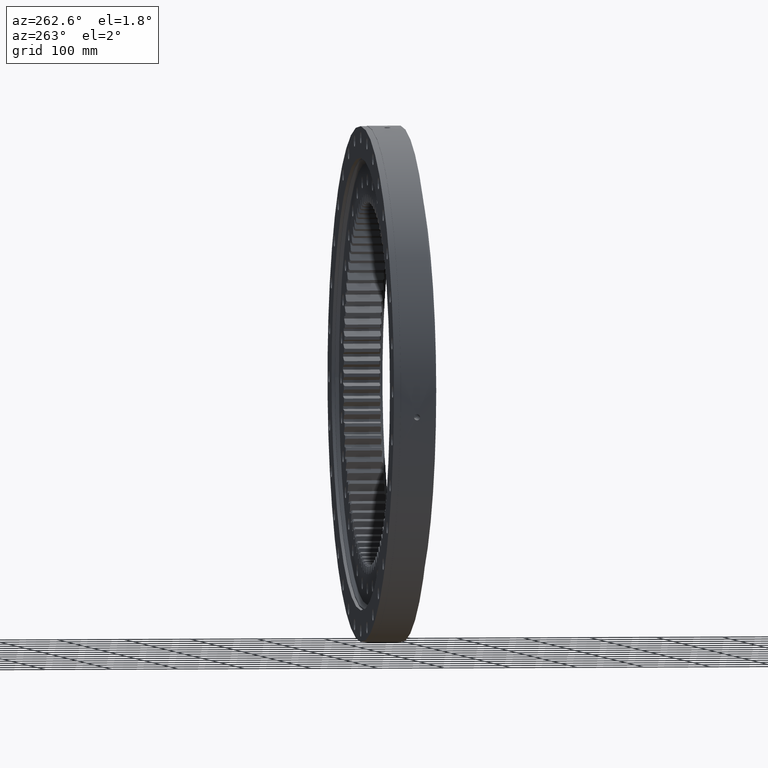
[diagram: clean part render]
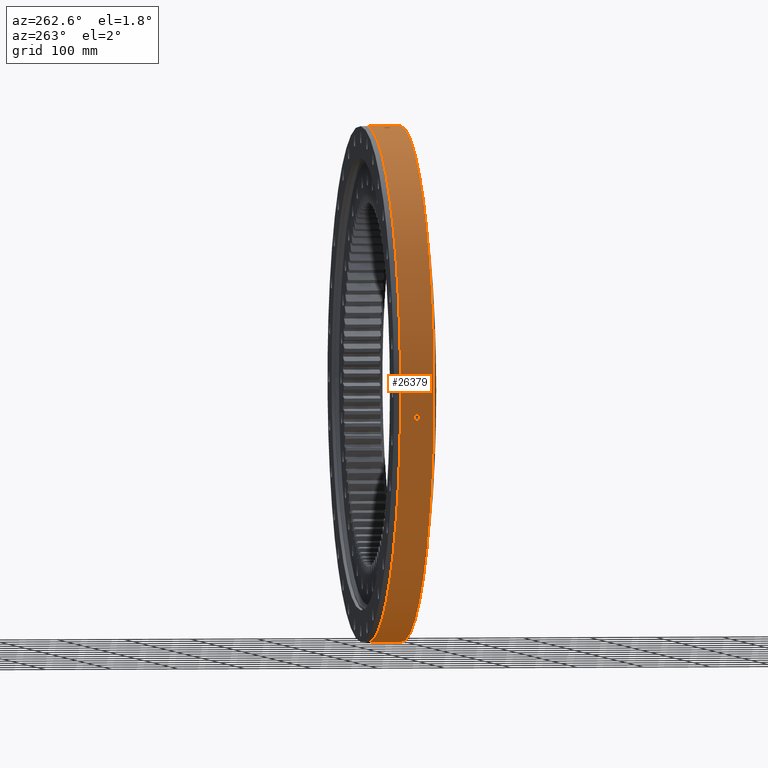
[diagram: same view with one face highlighted and labeled with its STEP entity id]
A machine part, auxiliary view. The second image highlights one B-rep face of the part: STEP entity #26379.
In plain terms, the highlighted cylindrical surface (partial cylindrical patch) has radius 385.5 mm, axis along (0, -1, -0).
Its self-contained STEP definition (entity closure, byte-faithful):
#226 = CARTESIAN_POINT ( 'NONE',  ( -383.2016645652428200, 1.450676202379365800, -42.03269008605138200 ) ) ;
#318 = EDGE_CURVE ( 'NONE', #14353, #25315, #10986, .T. ) ;
#460 = DIRECTION ( 'NONE',  ( 1.173697223544192200E-016, -1.000000000000000000, -3.494217355385783800E-017 ) ) ;
#778 = CARTESIAN_POINT ( 'NONE',  ( -383.2967569236588500, 2.974982815461019400, -41.15688579916335500 ) ) ;
#1023 = CARTESIAN_POINT ( 'NONE',  ( -383.4433818436832000, -4.045621623530661500, -39.76804501639435300 ) ) ;
#1173 = EDGE_CURVE ( 'NONE', #21033, #3564, #20179, .T. ) ;
#1436 = AXIS2_PLACEMENT_3D ( 'NONE', #24187, #16941, #20472 ) ;
#1623 = B_SPLINE_CURVE_WITH_KNOTS ( 'NONE', 3,
 ( #5855, #6726, #14996, #8394, #226, #15526, #10446, #6783, #778, #6037, #13989, #11689, #12382, #12183, #13425, #12693, #12322, #12912, #13292, #12606, #13077, #13769, #13343, #13256, #13848, #14690, #13932, #15019, #20805, #24924, #19376, #19934, #19554, #19737 ),
 .UNSPECIFIED., .F., .F.,
 ( 4, 2, 2, 2, 2, 2, 2, 2, 2, 2, 2, 2, 2, 2, 2, 2, 4 ),
 ( 7.849352296262508800E-019, 0.0008793235656108782300, 0.001758647131221755800, 0.002637970696832633200, 0.003517294262443510700, 0.004396617828054388300, 0.005275941393665265500, 0.006155264959276143500, 0.007034588524887020600, 0.007913912090497897700, 0.008793235656108774900, 0.009672559221719652000, 0.01055188278733052900, 0.01143120635294140600, 0.01231052991855228500, 0.01318985348416316200, 0.01406917704977403900 ),
 .UNSPECIFIED. ) ;
#1955 = EDGE_CURVE ( 'NONE', #18671, #4089, #25962, .T. ) ;
#2660 = EDGE_CURVE ( 'NONE', #18671, #26499, #5840, .T. ) ;
#2884 = CARTESIAN_POINT ( 'NONE',  ( -383.4166013391781600, -3.907535191448782400, -40.02523683465956600 ) ) ;
#3291 = CARTESIAN_POINT ( 'NONE',  ( -40.51150435746916400, -3.581689695793402800, 383.3655276375947700 ) ) ;
#3300 = CARTESIAN_POINT ( 'NONE',  ( -40.74204437356131300, -3.391799928255416800, 383.3410740150256400 ) ) ;
#3325 = CARTESIAN_POINT ( 'NONE',  ( -41.15541694403901800, -2.976679605437417800, 383.2969147578583600 ) ) ;
#3495 = CARTESIAN_POINT ( 'NONE',  ( -35.79674743004310500, -4.042874163953057700, 383.8344915170073900 ) ) ;
#3498 = CARTESIAN_POINT ( 'NONE',  ( -383.6150045424285500, -4.500248044623155000, -38.07711018638053000 ) ) ;
#3524 = CARTESIAN_POINT ( 'NONE',  ( -38.94138308133139500, -4.357378170738210900, 383.5282275650133100 ) ) ;
#3550 = CARTESIAN_POINT ( 'NONE',  ( -39.76804501639299600, -4.045621623530633900, 383.4433818436831400 ) ) ;
#3558 = CARTESIAN_POINT ( 'NONE',  ( -40.02523683465823700, -3.907535191448753900, 383.4166013391781600 ) ) ;
#3564 = VERTEX_POINT ( 'NONE', #5047 ) ;
#3645 = ORIENTED_EDGE ( 'NONE', *, *, #8642, .T. ) ;
#4020 = CARTESIAN_POINT ( 'NONE',  ( -41.34067944963337000, -2.750360899487011700, 383.2769563430252900 ) ) ;
#4048 = CARTESIAN_POINT ( 'NONE',  ( -383.4993056657351100, -4.271333156886112400, -39.22508174683153500 ) ) ;
#4054 = CARTESIAN_POINT ( 'NONE',  ( -41.66765033094044000, -2.259569524779278600, 383.2415477956807900 ) ) ;
#4080 = CARTESIAN_POINT ( 'NONE',  ( -41.80729243394694100, -1.997041291930236700, 383.2263207847927900 ) ) ;
#4089 = VERTEX_POINT ( 'NONE', #20272 ) ;
#4278 = CARTESIAN_POINT ( 'NONE',  ( -42.03084031017920100, -1.455753873935970800, 383.2018673045927200 ) ) ;
#4332 = CARTESIAN_POINT ( 'NONE',  ( -42.11661706502265200, -1.173645587967845300, 383.1924372391195000 ) ) ;
#4364 = CARTESIAN_POINT ( 'NONE',  ( -39.22508174683019900, -4.271333156886085700, 383.4993056657352200 ) ) ;
#4409 = VERTEX_POINT ( 'NONE', #26227 ) ;
#4454 = EDGE_CURVE ( 'NONE', #4409, #26499, #18948, .T. ) ;
#4534 = CARTESIAN_POINT ( 'NONE',  ( -33.30470185917213400, -5.889265935609994100E-009, 384.0586502528900600 ) ) ;
#4738 = CARTESIAN_POINT ( 'NONE',  ( -37.48656920171220700, -4.499748781644789200, 383.6731618965788500 ) ) ;
#4770 = CARTESIAN_POINT ( 'NONE',  ( -38.07711018637918700, -4.500248044623130100, 383.6150045424285500 ) ) ;
#4808 = CARTESIAN_POINT ( 'NONE',  ( -38.36928389427767900, -4.471227295629185900, 383.5858843973380200 ) ) ;
#4866 = CARTESIAN_POINT ( 'NONE',  ( -384.0191738090256300, -1.991450547489007800, -33.75702452146866500 ) ) ;
#5047 = CARTESIAN_POINT ( 'NONE',  ( -383.1764959899238100, -5.889291027310715300E-009, -42.26136439922324700 ) ) ;
#5078 = EDGE_CURVE ( 'NONE', #4089, #4409, #15941, .T. ) ;
#5532 = CARTESIAN_POINT ( 'NONE',  ( -42.26136439922191100, -5.889264632033163800E-009, 383.1764959899239200 ) ) ;
#5840 = LINE ( 'NONE', #9368, #22104 ) ;
#5855 = CARTESIAN_POINT ( 'NONE',  ( -383.1764959899238100, -5.889291027310715300E-009, -42.26136439922324700 ) ) ;
#6037 = CARTESIAN_POINT ( 'NONE',  ( -383.3408720552200700, 3.390112711022618400, -40.74394346185918200 ) ) ;
#6135 = CARTESIAN_POINT ( 'NONE',  ( -383.2969147578581300, -2.976679605437443600, -41.15541694404035400 ) ) ;
#6195 = CARTESIAN_POINT ( 'NONE',  ( -383.3655276375947700, -3.581689695793431200, -40.51150435747051400 ) ) ;
#6284 = CARTESIAN_POINT ( 'NONE',  ( -36.33843695054681400, -4.268829609471028500, 383.7835874613204500 ) ) ;
#6726 = CARTESIAN_POINT ( 'NONE',  ( -383.1764959899238600, 0.2973281795792259700, -42.26136439922326800 ) ) ;
#6754 = CARTESIAN_POINT ( 'NONE',  ( -33.30470185917213400, -5.889265935609994100E-009, 384.0586502528900600 ) ) ;
#6783 = CARTESIAN_POINT ( 'NONE',  ( -383.2763915165968500, 2.743371633581785000, -41.34591128267493300 ) ) ;
#6833 = EDGE_LOOP ( 'NONE', ( #16464, #26647 ) ) ;
#6917 = CARTESIAN_POINT ( 'NONE',  ( -6.860968290678036800E-014, -24.99999999999991800, -385.5000000000000600 ) ) ;
#7690 = CARTESIAN_POINT ( 'NONE',  ( -42.23236992071142000, -0.5914374671925807200, 383.1796971671887500 ) ) ;
#8081 = FACE_BOUND ( 'NONE', #6833, .T. ) ;
#8308 = CARTESIAN_POINT ( 'NONE',  ( -383.2263207847925100, -1.997041291930264900, -41.80729243394827700 ) ) ;
#8394 = CARTESIAN_POINT ( 'NONE',  ( -383.1922067349003700, 1.164871287774889700, -42.11871277345238700 ) ) ;
#8463 = CARTESIAN_POINT ( 'NONE',  ( -383.9779062960432700, -2.745439599636198200, -34.22345044405713600 ) ) ;
#8587 = CARTESIAN_POINT ( 'NONE',  ( -37.19587300245967800, -4.470445454231195500, 383.7014461068237100 ) ) ;
#8642 = EDGE_CURVE ( 'NONE', #3564, #21033, #1623, .T. ) ;
#8779 = CARTESIAN_POINT ( 'NONE',  ( -384.0069865961999100, -2.252561666250934000, -33.89559453816524800 ) ) ;
#8871 = DIRECTION ( 'NONE',  ( -5.551115123125783900E-017, 8.999862391578764600E-017, -1.000000000000000000 ) ) ;
#8929 = DIRECTION ( 'NONE',  ( -1.173697223544192200E-016, 1.000000000000000000, 8.822830751849692900E-017 ) ) ;
#8984 = CARTESIAN_POINT ( 'NONE',  ( -2.934243058860487600E-015, 25.00000000000006400, 8.735543388464481800E-016 ) ) ;
#9107 = CARTESIAN_POINT ( 'NONE',  ( -40.51860990012616500, 3.576388753180328000, 383.3647776853587200 ) ) ;
#9202 = CARTESIAN_POINT ( 'NONE',  ( -41.34591128267359700, 2.743371633581808600, 383.2763915165970200 ) ) ;
#9247 = CARTESIAN_POINT ( 'NONE',  ( -42.26136439922191100, -5.889264632033163800E-009, 383.1764959899239200 ) ) ;
#9295 = CARTESIAN_POINT ( 'NONE',  ( -40.74394346185783900, 3.390112711022642300, 383.3408720552201900 ) ) ;
#9368 = CARTESIAN_POINT ( 'NONE',  ( -6.600834177177175800E-014, -22.16364734299515500, -385.5000000000000600 ) ) ;
#9397 = CARTESIAN_POINT ( 'NONE',  ( -41.67065445237674500, 2.254174233670408700, 383.2412206839044300 ) ) ;
#9460 = CARTESIAN_POINT ( 'NONE',  ( -41.15688579916200500, 2.974982815461043400, 383.2967569236589600 ) ) ;
#9498 = EDGE_LOOP ( 'NONE', ( #16784, #23074, #14584, #21413 ) ) ;
#9683 = CARTESIAN_POINT ( 'NONE',  ( -39.76873183047116800, 4.045119728991892300, 383.4433091013887600 ) ) ;
#9730 = CARTESIAN_POINT ( 'NONE',  ( -384.0462306307785500, -1.165420096554610700, -33.44766129955477400 ) ) ;
#9845 = AXIS2_PLACEMENT_3D ( 'NONE', #8984, #8929, #8871 ) ;
#10201 = CARTESIAN_POINT ( 'NONE',  ( -383.7565181870189700, -4.355727754767166000, -36.62331855333629000 ) ) ;
#10435 = CARTESIAN_POINT ( 'NONE',  ( -35.05217260267092200, -3.577392068716293200, 383.9031845019908900 ) ) ;
#10446 = CARTESIAN_POINT ( 'NONE',  ( -383.2412206839043200, 2.254174233670384300, -41.67065445237808100 ) ) ;
#10661 = CARTESIAN_POINT ( 'NONE',  ( -42.26136439922191800, 0.2973281795792506700, 383.1764959899240900 ) ) ;
#10771 = CARTESIAN_POINT ( 'NONE',  ( -42.23236027227254400, 0.5896867515288283200, 383.1796980711376400 ) ) ;
#10848 = CARTESIAN_POINT ( 'NONE',  ( -42.11871277345106500, 1.164871287774914100, 383.1922067349005400 ) ) ;
#10986 = B_SPLINE_CURVE_WITH_KNOTS ( 'NONE', 3,
 ( #18933, #22758, #22108, #18691, #19411, #19431, #20684, #26094, #13829, #19456, #10435, #23213, #3495, #6284, #23246, #8587, #4738, #4770, #4808, #3524, #4364, #3550, #3558, #3291, #3300, #3325, #4020, #4054, #4080, #4278, #4332, #7690, #18406, #5532 ),
 .UNSPECIFIED., .F., .F.,
 ( 4, 2, 2, 2, 2, 2, 2, 2, 2, 2, 2, 2, 2, 2, 2, 2, 4 ),
 ( 0.01406917704977403300, 0.01494830207552871900, 0.01582742710128340300, 0.01670655212703808800, 0.01758567715279277600, 0.01846480217854746000, 0.01934392720430214500, 0.02022305223005683300, 0.02110217725581151800, 0.02198130228156620200, 0.02286042730732088700, 0.02373955233307557100, 0.02461867735883025900, 0.02549780238458494400, 0.02637692741033963200, 0.02725605243609431600, 0.02813517746184900100 ),
 .UNSPECIFIED. ) ;
#11496 = CARTESIAN_POINT ( 'NONE',  ( -383.3410740150254100, -3.391799928255440700, -40.74204437356264200 ) ) ;
#11689 = CARTESIAN_POINT ( 'NONE',  ( -383.4161787464568600, 3.905343742302946900, -40.02929419123120200 ) ) ;
#11816 = EDGE_CURVE ( 'NONE', #25315, #14353, #23473, .T. ) ;
#12183 = CARTESIAN_POINT ( 'NONE',  ( -383.4988003952542500, 4.269499979287751000, -39.23000664578166400 ) ) ;
#12187 = FACE_BOUND ( 'NONE', #17063, .T. ) ;
#12242 = CARTESIAN_POINT ( 'NONE',  ( -383.7835874613203900, -4.268829609471050700, -36.33843695054815700 ) ) ;
#12322 = CARTESIAN_POINT ( 'NONE',  ( -383.6147856439675400, 4.499895670713995900, -38.07929073591198200 ) ) ;
#12326 = CARTESIAN_POINT ( 'NONE',  ( -384.0586502528899500, -5.889292519920844700E-009, -33.30470185917347700 ) ) ;
#12375 = CARTESIAN_POINT ( 'NONE',  ( -33.53335385083575900, 1.449122776357208500, 384.0387700968595400 ) ) ;
#12382 = CARTESIAN_POINT ( 'NONE',  ( -383.4433091013887600, 4.045119728991866600, -39.76873183047252500 ) ) ;
#12461 = CARTESIAN_POINT ( 'NONE',  ( -36.62386252250741600, 4.355940878553969500, 383.7564670167416200 ) ) ;
#12606 = CARTESIAN_POINT ( 'NONE',  ( -383.7564670167414500, 4.355940878553943700, -36.62386252250874500 ) ) ;
#12627 = CARTESIAN_POINT ( 'NONE',  ( -38.94787376807921900, 4.355842006098603400, 383.5275707194902600 ) ) ;
#12693 = CARTESIAN_POINT ( 'NONE',  ( -383.5858288588968300, 4.471353857607981700, -38.36986150197574100 ) ) ;
#12881 = CARTESIAN_POINT ( 'NONE',  ( -33.44861226207196800, 1.168566259372374200, 384.0461478067717800 ) ) ;
#12912 = CARTESIAN_POINT ( 'NONE',  ( -383.6723259150307400, 4.500103752080856400, -37.49509934068382200 ) ) ;
#13009 = CARTESIAN_POINT ( 'NONE',  ( -6.860968290678036800E-014, 25.00000000000009900, -385.5000000000000600 ) ) ;
#13077 = CARTESIAN_POINT ( 'NONE',  ( -383.7830048904340300, 4.270947315938504300, -36.34459205412532900 ) ) ;
#13256 = CARTESIAN_POINT ( 'NONE',  ( -383.9030121503619700, 3.578753650602948700, -35.05405432064882400 ) ) ;
#13292 = CARTESIAN_POINT ( 'NONE',  ( -383.7012030953158000, 4.470844532490521500, -37.19838741728164400 ) ) ;
#13343 = CARTESIAN_POINT ( 'NONE',  ( -383.8583578519287600, 3.904598704802070100, -35.53970413012228100 ) ) ;
#13425 = CARTESIAN_POINT ( 'NONE',  ( -383.5275707194899700, 4.355842006098579400, -38.94787376808055500 ) ) ;
#13687 = CARTESIAN_POINT ( 'NONE',  ( -42.26136439922191100, -5.889264632033163800E-009, 383.1764959899239200 ) ) ;
#13769 = CARTESIAN_POINT ( 'NONE',  ( -383.8339891472994600, 4.045562459607570100, -35.80213666225247900 ) ) ;
#13829 = CARTESIAN_POINT ( 'NONE',  ( -34.40896978455041500, -2.972154798929135900, 383.9613467128085600 ) ) ;
#13848 = CARTESIAN_POINT ( 'NONE',  ( -383.9235943246240500, 3.392748866926663400, -34.82768817524716800 ) ) ;
#13932 = CARTESIAN_POINT ( 'NONE',  ( -383.9779153636661100, 2.744957358303038200, -34.22334101264541300 ) ) ;
#13989 = CARTESIAN_POINT ( 'NONE',  ( -383.3647776853584900, 3.576388753180300900, -40.51860990012749400 ) ) ;
#14353 = VERTEX_POINT ( 'NONE', #4534 ) ;
#14360 = CARTESIAN_POINT ( 'NONE',  ( -42.03269008605003900, 1.450676202379387800, 383.2016645652428200 ) ) ;
#14517 = CARTESIAN_POINT ( 'NONE',  ( -34.40918230644101100, 2.972764524446633400, 383.9613291931529500 ) ) ;
#14548 = CARTESIAN_POINT ( 'NONE',  ( -33.33402318523582200, 0.5919630411727681000, 384.0561107517564800 ) ) ;
#14570 = CARTESIAN_POINT ( 'NONE',  ( -33.30470185917213400, 0.2936968268585913300, 384.0586502528900600 ) ) ;
#14584 = ORIENTED_EDGE ( 'NONE', *, *, #4454, .F. ) ;
#14597 = CARTESIAN_POINT ( 'NONE',  ( -36.34459205412399300, 4.270947315938530900, 383.7830048904342000 ) ) ;
#14659 = CARTESIAN_POINT ( 'NONE',  ( -33.75839437483735800, 1.994555763730176500, 384.0190536512828900 ) ) ;
#14684 = CARTESIAN_POINT ( 'NONE',  ( -33.89868875720981100, 2.257528116930497900, 384.0067127767903200 ) ) ;
#14690 = CARTESIAN_POINT ( 'NONE',  ( -383.9613291931527800, 2.972764524446605400, -34.40918230644236100 ) ) ;
#14695 = CARTESIAN_POINT ( 'NONE',  ( -384.0586502528899500, -0.2936305257015952600, -33.30470185917348400 ) ) ;
#14713 = CARTESIAN_POINT ( 'NONE',  ( -35.05405432064746700, 3.578753650602973100, 383.9030121503620300 ) ) ;
#14799 = CARTESIAN_POINT ( 'NONE',  ( -37.19838741728031600, 4.470844532490545500, 383.7012030953159800 ) ) ;
#14802 = CARTESIAN_POINT ( 'NONE',  ( -383.9613467128084500, -2.972154798929157200, -34.40896978455175800 ) ) ;
#14837 = DIRECTION ( 'NONE',  ( 1.173697223544192200E-016, -1.000000000000000000, -3.494217355385783800E-017 ) ) ;
#14919 = CARTESIAN_POINT ( 'NONE',  ( -39.23000664578032100, 4.269499979287775900, 383.4988003952542500 ) ) ;
#14939 = DIRECTION ( 'NONE',  ( 5.551115123125782700E-017, -3.599944956631505800E-017, 1.000000000000000000 ) ) ;
#14970 = CARTESIAN_POINT ( 'NONE',  ( -34.82768817524582500, 3.392748866926692800, 383.9235943246242200 ) ) ;
#14974 = CARTESIAN_POINT ( 'NONE',  ( 2.601341135008604100E-015, -22.16364734299516900, -7.744460120454373600E-016 ) ) ;
#14996 = CARTESIAN_POINT ( 'NONE',  ( -383.1796980711375200, 0.5896867515288039000, -42.23236027227389400 ) ) ;
#15019 = CARTESIAN_POINT ( 'NONE',  ( -384.0067127767901500, 2.257528116930475300, -33.89868875721114700 ) ) ;
#15046 = CARTESIAN_POINT ( 'NONE',  ( -34.22334101264407000, 2.744957358303061300, 383.9779153636662800 ) ) ;
#15114 = CARTESIAN_POINT ( 'NONE',  ( -383.1764959899238100, -5.889291027310715300E-009, -42.26136439922324700 ) ) ;
#15169 = CARTESIAN_POINT ( 'NONE',  ( -37.49509934068247900, 4.500103752080881300, 383.6723259150308500 ) ) ;
#15230 = CARTESIAN_POINT ( 'NONE',  ( -38.07929073591062500, 4.499895670714020700, 383.6147856439677100 ) ) ;
#15261 = CARTESIAN_POINT ( 'NONE',  ( -35.53970413012093100, 3.904598704802094900, 383.8583578519288700 ) ) ;
#15395 = AXIS2_PLACEMENT_3D ( 'NONE', #14974, #14837, #14939 ) ;
#15404 = CARTESIAN_POINT ( 'NONE',  ( -35.80213666225115100, 4.045562459607597600, 383.8339891472995800 ) ) ;
#15526 = CARTESIAN_POINT ( 'NONE',  ( -383.2262331902602500, 1.995685360896323900, -41.80809677858044200 ) ) ;
#15529 = CARTESIAN_POINT ( 'NONE',  ( -383.1796971671885200, -0.5914374671926065900, -42.23236992071277700 ) ) ;
#15941 = LINE ( 'NONE', #25942, #16061 ) ;
#16061 = VECTOR ( 'NONE', #460, 1000.000000000000000 ) ;
#16153 = CARTESIAN_POINT ( 'NONE',  ( -383.9031845019907800, -3.577392068716316800, -35.05217260267225800 ) ) ;
#16235 = CARTESIAN_POINT ( 'NONE',  ( -383.9241192202365500, -3.387315605968630000, -34.82188467204737500 ) ) ;
#16258 = CARTESIAN_POINT ( 'NONE',  ( -38.36986150197440500, 4.471353857608005600, 383.5858288588968900 ) ) ;
#16464 = ORIENTED_EDGE ( 'NONE', *, *, #11816, .T. ) ;
#16784 = ORIENTED_EDGE ( 'NONE', *, *, #1955, .F. ) ;
#16864 = CYLINDRICAL_SURFACE ( 'NONE', #15395, 385.5000000000000600 ) ;
#16941 = DIRECTION ( 'NONE',  ( 1.173697223544192200E-016, -1.000000000000000000, -3.494217355385783800E-017 ) ) ;
#17031 = CARTESIAN_POINT ( 'NONE',  ( -383.5282275650130800, -4.357378170738237500, -38.94138308133273800 ) ) ;
#17063 = EDGE_LOOP ( 'NONE', ( #3645, #18201 ) ) ;
#17914 = CARTESIAN_POINT ( 'NONE',  ( -384.0387344445817900, -1.449889321843353300, -33.53375916466210800 ) ) ;
#18191 = CARTESIAN_POINT ( 'NONE',  ( -383.2769563430252300, -2.750360899487036500, -41.34067944963470600 ) ) ;
#18201 = ORIENTED_EDGE ( 'NONE', *, *, #1173, .T. ) ;
#18287 = CARTESIAN_POINT ( 'NONE',  ( -383.1924372391193900, -1.173645587967870700, -42.11661706502400200 ) ) ;
#18406 = CARTESIAN_POINT ( 'NONE',  ( -42.26136439922190400, -0.2972610585098841000, 383.1764959899241500 ) ) ;
#18468 = CARTESIAN_POINT ( 'NONE',  ( -383.2415477956807300, -2.259569524779303100, -41.66765033094177500 ) ) ;
#18671 = VERTEX_POINT ( 'NONE', #13009 ) ;
#18691 = CARTESIAN_POINT ( 'NONE',  ( -33.44766129955343800, -1.165420096554586400, 384.0462306307786100 ) ) ;
#18757 = CARTESIAN_POINT ( 'NONE',  ( -383.2018673045925000, -1.455753873935999600, -42.03084031018051500 ) ) ;
#18787 = FACE_OUTER_BOUND ( 'NONE', #9498, .T. ) ;
#18933 = CARTESIAN_POINT ( 'NONE',  ( -33.30470185917213400, -5.889265935609994100E-009, 384.0586502528900600 ) ) ;
#18942 = CARTESIAN_POINT ( 'NONE',  ( -384.0561942536388600, -0.5854555012525261000, -33.33306111850655600 ) ) ;
#18948 = CIRCLE ( 'NONE', #1436, 385.5000000000000600 ) ;
#19348 = CARTESIAN_POINT ( 'NONE',  ( -40.02929419122985200, 3.905343742302974900, 383.4161787464570900 ) ) ;
#19376 = CARTESIAN_POINT ( 'NONE',  ( -384.0461478067717800, 1.168566259372350500, -33.44861226207331100 ) ) ;
#19411 = CARTESIAN_POINT ( 'NONE',  ( -33.53375916466076500, -1.449889321843328400, 384.0387344445819600 ) ) ;
#19431 = CARTESIAN_POINT ( 'NONE',  ( -33.75702452146732200, -1.991450547488983400, 384.0191738090255700 ) ) ;
#19456 = CARTESIAN_POINT ( 'NONE',  ( -34.82188467204603200, -3.387315605968608700, 383.9241192202366600 ) ) ;
#19554 = CARTESIAN_POINT ( 'NONE',  ( -384.0586502528900000, 0.2936968268585664100, -33.30470185917348400 ) ) ;
#19737 = CARTESIAN_POINT ( 'NONE',  ( -384.0586502528899500, -5.889292519920844700E-009, -33.30470185917347700 ) ) ;
#19934 = CARTESIAN_POINT ( 'NONE',  ( -384.0561107517563600, 0.5919630411727447900, -33.33402318523717200 ) ) ;
#19957 = CARTESIAN_POINT ( 'NONE',  ( -41.80809677857909900, 1.995685360896345900, 383.2262331902604700 ) ) ;
#20179 = B_SPLINE_CURVE_WITH_KNOTS ( 'NONE', 3,
 ( #12326, #14695, #18942, #9730, #17914, #4866, #8779, #8463, #14802, #16235, #16153, #25207, #24484, #12242, #10201, #25477, #25295, #3498, #22911, #17031, #4048, #1023, #2884, #6195, #11496, #6135, #18191, #18468, #8308, #18757, #18287, #15529, #21207, #15114 ),
 .UNSPECIFIED., .F., .F.,
 ( 4, 2, 2, 2, 2, 2, 2, 2, 2, 2, 2, 2, 2, 2, 2, 2, 4 ),
 ( 0.01406917704977403900, 0.01494830207552872600, 0.01582742710128341400, 0.01670655212703809800, 0.01758567715279278600, 0.01846480217854747100, 0.01934392720430215900, 0.02022305223005684700, 0.02110217725581153100, 0.02198130228156621600, 0.02286042730732090400, 0.02373955233307559200, 0.02461867735883027700, 0.02549780238458496100, 0.02637692741033964600, 0.02725605243609433400, 0.02813517746184901800 ),
 .UNSPECIFIED. ) ;
#20272 = CARTESIAN_POINT ( 'NONE',  ( 2.139954879964989200E-014, 25.00000000000002800, 385.5000000000000600 ) ) ;
#20472 = DIRECTION ( 'NONE',  ( 5.551115123125782700E-017, -3.599944956631505800E-017, 1.000000000000000000 ) ) ;
#20684 = CARTESIAN_POINT ( 'NONE',  ( -33.89559453816391300, -2.252561666250908700, 384.0069865962000200 ) ) ;
#20805 = CARTESIAN_POINT ( 'NONE',  ( -384.0190536512828900, 1.994555763730152800, -33.75839437483871600 ) ) ;
#21033 = VERTEX_POINT ( 'NONE', #21590 ) ;
#21207 = CARTESIAN_POINT ( 'NONE',  ( -383.1764959899239200, -0.2972610585099089700, -42.26136439922325400 ) ) ;
#21413 = ORIENTED_EDGE ( 'NONE', *, *, #5078, .F. ) ;
#21590 = CARTESIAN_POINT ( 'NONE',  ( -384.0586502528899500, -5.889292519920844700E-009, -33.30470185917347700 ) ) ;
#22104 = VECTOR ( 'NONE', #22938, 1000.000000000000000 ) ;
#22108 = CARTESIAN_POINT ( 'NONE',  ( -33.33306111850521300, -0.5854555012525017900, 384.0561942536391500 ) ) ;
#22758 = CARTESIAN_POINT ( 'NONE',  ( -33.30470185917212700, -0.2936305257015705000, 384.0586502528900000 ) ) ;
#22911 = CARTESIAN_POINT ( 'NONE',  ( -383.5858843973377900, -4.471227295629211600, -38.36928389427900800 ) ) ;
#22938 = DIRECTION ( 'NONE',  ( 1.173697223544192200E-016, -1.000000000000000000, -3.494217355385783800E-017 ) ) ;
#23074 = ORIENTED_EDGE ( 'NONE', *, *, #2660, .T. ) ;
#23213 = CARTESIAN_POINT ( 'NONE',  ( -35.53950414034314800, -3.904563173439254500, 383.8583769053316800 ) ) ;
#23246 = CARTESIAN_POINT ( 'NONE',  ( -36.62331855333496100, -4.355727754767142900, 383.7565181870189700 ) ) ;
#23473 = B_SPLINE_CURVE_WITH_KNOTS ( 'NONE', 3,
 ( #13687, #10661, #10771, #10848, #14360, #19957, #9397, #9202, #9460, #9295, #9107, #19348, #9683, #14919, #12627, #16258, #15230, #15169, #14799, #12461, #14597, #15404, #15261, #14713, #14970, #14517, #15046, #14684, #14659, #12375, #12881, #14548, #14570, #6754 ),
 .UNSPECIFIED., .F., .F.,
 ( 4, 2, 2, 2, 2, 2, 2, 2, 2, 2, 2, 2, 2, 2, 2, 2, 4 ),
 ( 8.560967158084519200E-019, 0.0008793235656108781200, 0.001758647131221755400, 0.002637970696832632700, 0.003517294262443509900, 0.004396617828054386600, 0.005275941393665264600, 0.006155264959276141700, 0.007034588524887018900, 0.007913912090497894300, 0.008793235656108771400, 0.009672559221719648600, 0.01055188278733052700, 0.01143120635294140300, 0.01231052991855227800, 0.01318985348416315500, 0.01406917704977403300 ),
 .UNSPECIFIED. ) ;
#24187 = CARTESIAN_POINT ( 'NONE',  ( 2.934243058860472200E-015, -24.99999999999993200, -8.735543388464435400E-016 ) ) ;
#24484 = CARTESIAN_POINT ( 'NONE',  ( -383.8344915170072800, -4.042874163953080700, -35.79674743004443400 ) ) ;
#24924 = CARTESIAN_POINT ( 'NONE',  ( -384.0387700968594800, 1.449122776357185700, -33.53335385083711600 ) ) ;
#25207 = CARTESIAN_POINT ( 'NONE',  ( -383.8583769053315700, -3.904563173439278500, -35.53950414034447600 ) ) ;
#25295 = CARTESIAN_POINT ( 'NONE',  ( -383.6731618965786200, -4.499748781644814100, -37.48656920171352900 ) ) ;
#25315 = VERTEX_POINT ( 'NONE', #9247 ) ;
#25477 = CARTESIAN_POINT ( 'NONE',  ( -383.7014461068236000, -4.470445454231219500, -37.19587300246100600 ) ) ;
#25942 = CARTESIAN_POINT ( 'NONE',  ( 2.400088993465849900E-014, -22.16364734299518300, 385.5000000000000600 ) ) ;
#25962 = CIRCLE ( 'NONE', #9845, 385.5000000000000600 ) ;
#26094 = CARTESIAN_POINT ( 'NONE',  ( -34.22345044405580000, -2.745439599636172500, 383.9779062960433300 ) ) ;
#26227 = CARTESIAN_POINT ( 'NONE',  ( 2.433379185851036700E-014, -24.99999999999994700, 385.5000000000000600 ) ) ;
#26379 = ADVANCED_FACE ( 'NONE', ( #8081, #12187, #18787 ), #16864, .T. ) ;
#26499 = VERTEX_POINT ( 'NONE', #6917 ) ;
#26647 = ORIENTED_EDGE ( 'NONE', *, *, #318, .T. ) ;